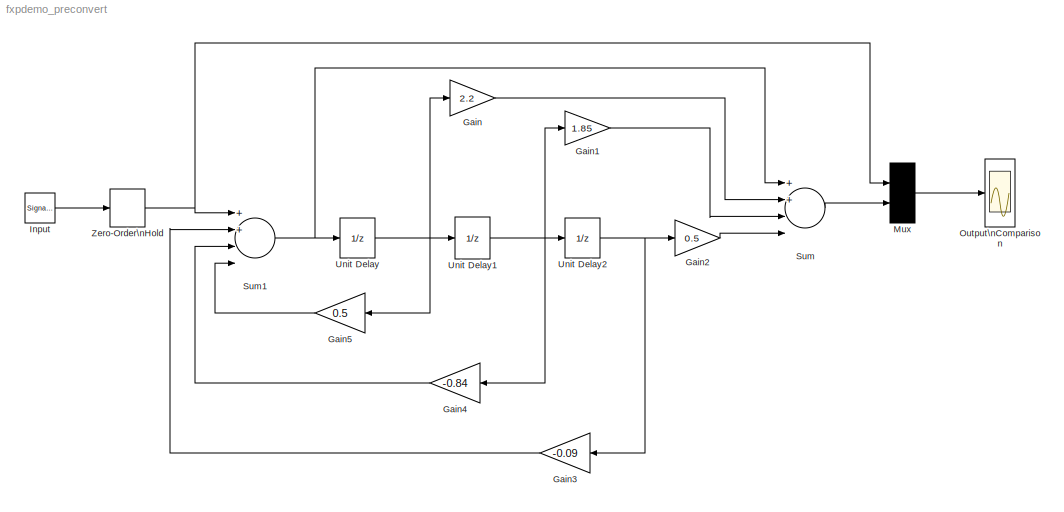
MODEL fxpdemo_preconvert
KIND model
CONFIG AbsTol = auto
CONFIG FixedStep = 1
CONFIG MaxStep = auto
CONFIG MinStep = auto
CONFIG RelTol = 1e-3
CONFIG Solver = FixedStepDiscrete
CONFIG SolverMode = SingleTasking
CONFIG StartTime = 0.0
CONFIG StopTime = 200.0
BLOCK [Gain] Gain
  Gain = 2.2
BLOCK [Gain] Gain1
  Gain = 1.85
BLOCK [Gain] Gain2
  Gain = 0.5
BLOCK [Gain] Gain3
  Gain = -0.09
BLOCK [Gain] Gain4
  Gain = -0.84
BLOCK [Gain] Gain5
  Gain = 0.5
BLOCK [SignalGenerator] Input
  Frequency = 0.005
  WaveForm = square
BLOCK [Mux] Mux
  DisplayOption = bar
  Inputs = 2
  Ports = [2, 1]
BLOCK [Scope] Output\nComparison
  DataFormat = StructureWithTime
  NumInputPorts = 1
  Ports = [1]
  SaveName = OutputComparison
  SaveToWorkspace = on
  TickLabels = on
  TimeRange = 200
  YMax = 10
  YMin = -8
BLOCK [Sum] Sum
  Inputs = 4
  Ports = [4, 1]
BLOCK [Sum] Sum1
  Inputs = 4
  Ports = [4, 1]
BLOCK [UnitDelay] Unit Delay
BLOCK [UnitDelay] Unit Delay1
BLOCK [UnitDelay] Unit Delay2
BLOCK [ZeroOrderHold] Zero-Order\nHold
LINE Gain1:1 -> Sum:3
LINE Gain2:1 -> Sum:4
LINE Gain3:1 -> Sum1:2
LINE Gain4:1 -> Sum1:3
LINE Gain5:1 -> Sum1:4
LINE Gain:1 -> Sum:2
LINE Input:1 -> Zero-Order\nHold:1
LINE Mux:1 -> Output\nComparison:1
NET Sum1:1 -> Sum:1, Unit Delay:1
LINE Sum:1 -> Mux:2
NET Unit Delay1:1 -> Gain1:1, Gain4:1, Unit Delay2:1
NET Unit Delay2:1 -> Gain2:1, Gain3:1
NET Unit Delay:1 -> Gain5:1, Gain:1, Unit Delay1:1
NET Zero-Order\nHold:1 -> Mux:1, Sum1:1
note: NET lines group one-source signal fan-out (src -> all destinations, sorted); 1:1 wires keep LINE
